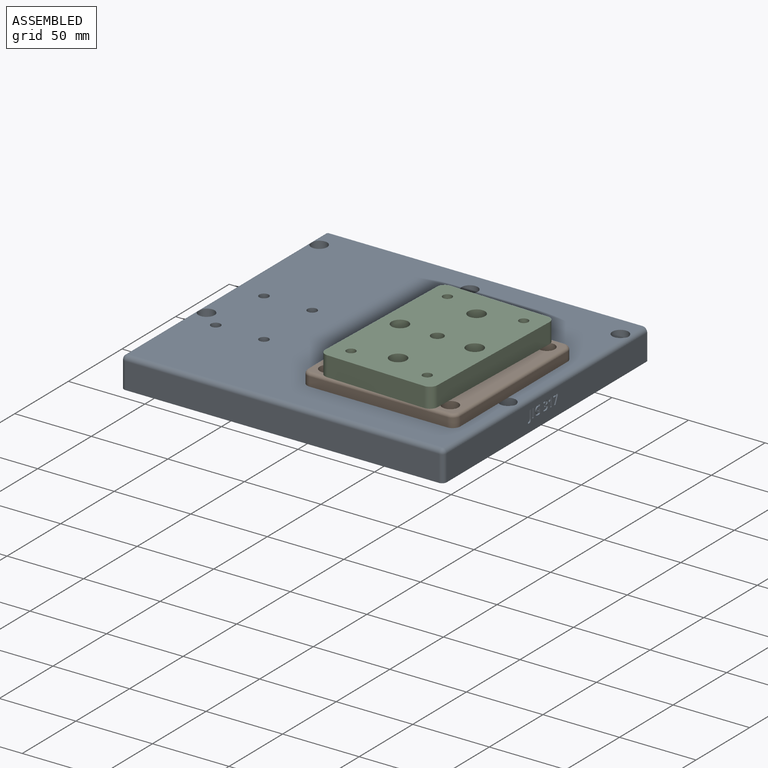
[diagram: assembled view]
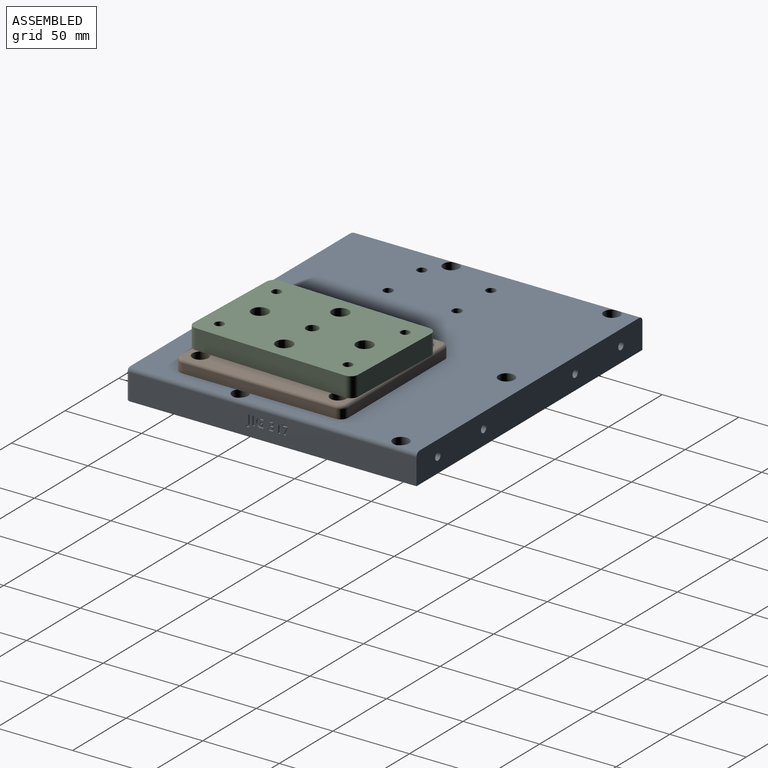
[diagram: assembled view, second angle]
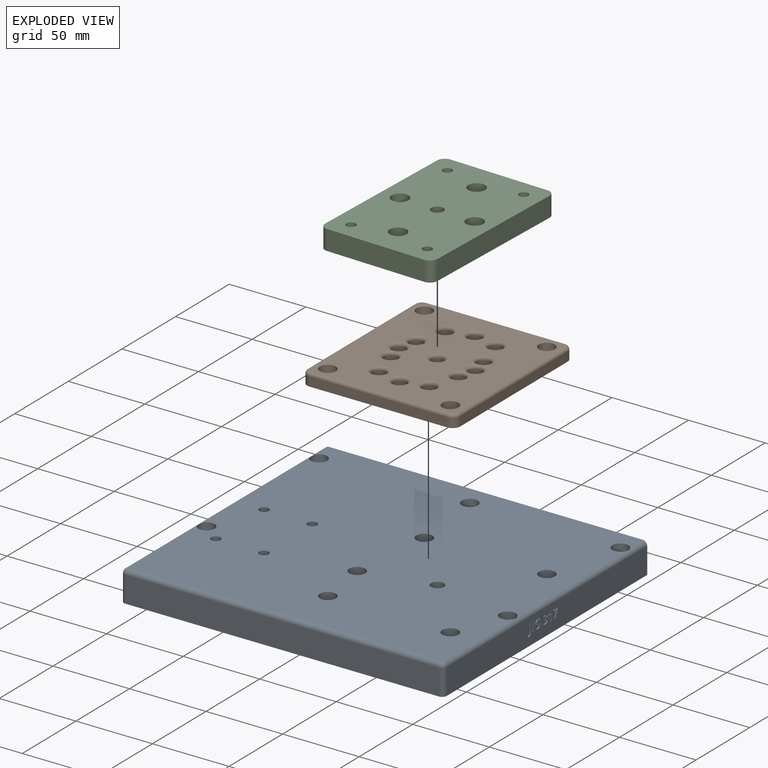
[diagram: exploded view]
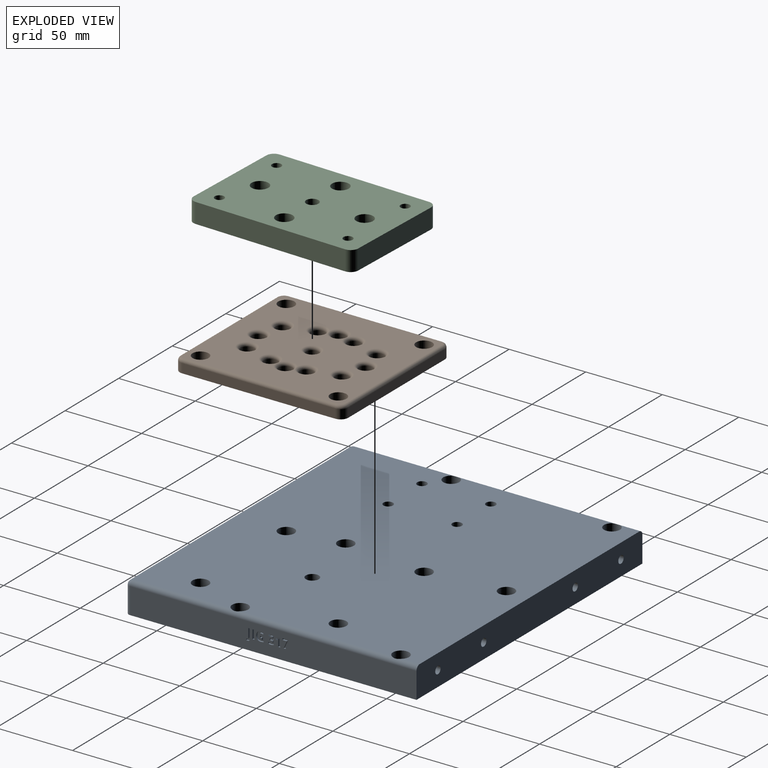
[diagram: exploded view, second angle]
ASSEMBLY  parts=3 mates=2
PART A: 139 faces, bbox 210.8x190x20 mm
  f0: plane 187x17mm, normal (1,0,0), area 3113mm2, adj f2,f5,f41,f43,f56,f57,f58,f59
  f1: plane 187x17mm, normal (-1,0,0), area 3179mm2, adj f2,f5,f37,f38
  f2: plane 210.75x20mm, normal (0,1,0), area 4132.6mm2, adj f0,f1,f5,f6,f29,f31,f33,f35
  f3: plane 204.75x17mm, normal (0,-1,0), area 3480.8mm2, adj f5,f37,f40,f43
  f4: cylinder r=4.25mm len=20mm, axis (0,0,1), area 534.1mm2, adj f5,f6
  f5: plane 210.75x190mm, normal (0,0,-1), area 39559.2mm2, adj f0,f1,f2,f3,f4,f7,f8,f9
  f6: plane 204.75x187mm, normal (0,0,1), area 37268.1mm2, adj f2,f4,f7,f8,f9,f10,f13,f16
  f7: cylinder r=3.1mm len=20mm, axis (0,0,1), area 389.6mm2, adj f5,f6
  f8: cylinder r=3.1mm len=20mm, axis (0,0,1), area 389.6mm2, adj f5,f6
  f9: cylinder r=3.1mm len=20mm, axis (0,0,1), area 389.6mm2, adj f5,f6
  f10: cylinder r=3.1mm len=20mm, axis (0,0,1), area 389.6mm2, adj f5,f6
  f11: cylinder r=3.1mm len=10mm, axis (0,0,1), area 194.8mm2, adj f5,f12
  f12: plane 10.5x10.5mm, normal (0,0,1), area 56.4mm2, adj f11,f13
  f13: cylinder r=5.25mm len=10.5mm, axis (0,0,1), area 328.8mm2, adj f6,f12,f38
  f14: cylinder r=3.1mm len=10mm, axis (0,0,1), area 194.8mm2, adj f5,f15
  f15: plane 10.5x10.5mm, normal (0,0,1), area 56.4mm2, adj f14,f16
  f16: cylinder r=5.25mm len=10.5mm, axis (0,0,1), area 328.8mm2, adj f6,f15,f38
  f17: cylinder r=3.1mm len=10mm, axis (0,0,1), area 194.8mm2, adj f5,f18
  f18: plane 10.5x10.5mm, normal (0,0,1), area 56.4mm2, adj f17,f19
  f19: cylinder r=5.25mm len=10.5mm, axis (0,0,1), area 329.9mm2, adj f6,f18
  f20: cylinder r=3.1mm len=10mm, axis (0,0,1), area 194.8mm2, adj f5,f21
  f21: plane 10.5x10.5mm, normal (0,0,1), area 56.4mm2, adj f20,f22
  f22: cylinder r=5.25mm len=10.5mm, axis (0,0,1), area 329.9mm2, adj f6,f21
  f23: cylinder r=3.1mm len=10mm, axis (0,0,1), area 194.8mm2, adj f5,f24
  f24: plane 10.5x10.5mm, normal (0,0,1), area 56.4mm2, adj f23,f25
  f25: cylinder r=5.25mm len=10.5mm, axis (0,0,1), area 328.9mm2, adj f6,f24,f41
  f26: cylinder r=3.1mm len=10mm, axis (0,0,1), area 194.8mm2, adj f5,f27
  f27: plane 10.5x10.5mm, normal (0,0,1), area 56.4mm2, adj f26,f28
  f28: cylinder r=5.25mm len=10.5mm, axis (0,0,1), area 328.9mm2, adj f6,f27,f41
  f29: cylinder r=2.5mm len=30mm, axis (0,1,0), area 471.2mm2, adj f2,f30
  f30: cone r=0mm half-angle=59deg, axis (0,1,0), area 22.9mm2, adj f29
  f31: cylinder r=2.5mm len=30mm, axis (0,1,0), area 471.2mm2, adj f2,f32
  f32: cone r=0mm half-angle=59deg, axis (0,1,0), area 22.9mm2, adj f31
  f33: cylinder r=2.5mm len=30mm, axis (0,1,0), area 471.2mm2, adj f2,f34
  f34: cone r=0mm half-angle=59deg, axis (0,1,0), area 22.9mm2, adj f33
  f35: cylinder r=2.5mm len=30mm, axis (0,1,0), area 471.2mm2, adj f2,f36
  f36: cone r=0mm half-angle=59deg, axis (0,1,0), area 22.9mm2, adj f35
  f37: cylinder r=3mm len=17mm, axis (0,0,-1), area 80.1mm2, adj f1,f3,f5,f39
  f38: cylinder r=3mm len=187mm, axis (0,1,0), area 869.3mm2, adj f1,f2,f6,f13,f16,f39
  f39: sphere r=3mm, area 14.1mm2, adj f37,f38,f40
  f40: cylinder r=3mm len=204.75mm, axis (-1,0,0), area 964.9mm2, adj f3,f6,f39,f42
  f41: cylinder r=3mm len=187mm, axis (0,-1,0), area 869.3mm2, adj f0,f2,f6,f25,f28,f42
  f42: sphere r=3mm, area 14.1mm2, adj f40,f41,f43
  f43: cylinder r=3mm len=17mm, axis (0,0,1), area 80.1mm2, adj f0,f3,f5,f42
  f44: cylinder r=3.1mm len=14.2mm, axis (0,0,1), area 276.6mm2, adj f5,f45
  f45: plane 10.5x10.5mm, normal (0,0,1), area 56.4mm2, adj f44,f46
  f46: cylinder r=5.25mm len=10.5mm, axis (0,0,1), area 191.3mm2, adj f6,f45
  f47: cylinder r=3.1mm len=14.2mm, axis (0,0,1), area 276.6mm2, adj f5,f48
  f48: plane 10.5x10.5mm, normal (0,0,1), area 56.4mm2, adj f47,f49
  f49: cylinder r=5.25mm len=10.5mm, axis (0,0,1), area 191.3mm2, adj f6,f48
  f50: cylinder r=3.1mm len=14.2mm, axis (0,0,1), area 276.6mm2, adj f5,f51
  f51: plane 10.5x10.5mm, normal (0,0,1), area 56.4mm2, adj f50,f52
  f52: cylinder r=5.25mm len=10.5mm, axis (0,0,1), area 191.3mm2, adj f6,f51
  f53: cylinder r=3.1mm len=14.2mm, axis (0,0,1), area 276.6mm2, adj f5,f54
  f54: plane 10.5x10.5mm, normal (0,0,1), area 56.4mm2, adj f53,f55
  f55: cylinder r=5.25mm len=10.5mm, axis (0,0,1), area 191.3mm2, adj f6,f54
  f56: plane 1.29x1mm, normal (0,0,1), area 1.3mm2, adj f0,f57,f62,f63
  f57: plane 5.05x2.21mm, normal (0,-0.92,0.4), area 5.5mm2, adj f0,f56,f58,f63
  f58: plane 1x0.78mm, normal (0,-1,0), area 0.8mm2, adj f0,f57,f59,f63
  f59: plane 4.19x1mm, normal (0,0,-1), area 4.2mm2, adj f0,f58,f60,f63
  f60: plane 1.04x1mm, normal (0,1,0), area 1mm2, adj f0,f59,f61,f63
  f61: plane 2.88x1mm, normal (0,0,1), area 2.9mm2, adj f0,f60,f62,f63
  f62: plane 4.79x2.19mm, normal (0,0.91,-0.42), area 5.3mm2, adj f0,f56,f61,f63
  f63: plane 5.83x4.19mm, normal (1,0,0), area 10.3mm2, adj f56,f57,f58,f59,f60,f61,f62
  f64: plane 5.84x1mm, normal (0,-1,0), area 5.8mm2, adj f0,f65,f73,f74
  f65: plane 1.01x1mm, normal (0,0,-1), area 1mm2, adj f0,f64,f66,f74
  f66: plane 1.88x1.5mm, normal (0,0.62,-0.78), area 2.4mm2, adj f0,f65,f67,f74
  f67: plane 1x0.74mm, normal (0,0.78,0.63), area 1mm2, adj f0,f66,f68,f74
  f68: plane 1x0.67mm, normal (0,-0.63,0.78), area 0.9mm2, adj f0,f67,f69,f74
  f69: extruded ~1x0.43mm, area 0.6mm2, adj f0,f68,f70,f74
  f70: plane 1x0.61mm, normal (0,1,-0.03), area 0.6mm2, adj f0,f69,f71,f74
  f71: plane 1x0.55mm, normal (0,1,-0.02), area 0.6mm2, adj f0,f70,f72,f74
  f72: plane 3.38x1mm, normal (0,1,0), area 3.4mm2, adj f0,f71,f73,f74
  f73: plane 1.23x1mm, normal (0,0,1), area 1.2mm2, adj f0,f64,f72,f74
  f74: plane 5.84x2.89mm, normal (1,0,0), area 8.8mm2, adj f64,f65,f66,f67,f68,f69,f70,f71
  f75: extruded ~1.02x1mm, area 1.2mm2, adj f0,f76,f101,f102
  f76: extruded ~1.43x1mm, area 1.5mm2, adj f0,f75,f77,f102
  f77: extruded ~1.9x1mm, area 2mm2, adj f0,f76,f78,f102
  f78: plane 1x0.85mm, normal (0,0.83,0.56), area 1mm2, adj f0,f77,f79,f102
  f79: extruded ~1x0.66mm, area 0.7mm2, adj f0,f78,f80,f102
  f80: extruded ~1x0.59mm, area 0.6mm2, adj f0,f79,f81,f102
  f81: extruded ~1x0.83mm, area 1.2mm2, adj f0,f80,f82,f102
  f82: extruded ~1x0.61mm, area 0.7mm2, adj f0,f81,f83,f102
  f83: extruded ~1x0.99mm, area 1mm2, adj f0,f82,f84,f102
  f84: plane 1x0.45mm, normal (0,0,-1), area 0.5mm2, adj f0,f83,f85,f102
  f85: plane 1x0.95mm, normal (0,1,0), area 0.9mm2, adj f0,f84,f86,f102
  f86: plane 1x0.44mm, normal (0,0,1), area 0.4mm2, adj f0,f85,f87,f102
  f87: extruded ~1.07x1mm, area 1.1mm2, adj f0,f86,f88,f102
  f88: extruded ~1x0.58mm, area 0.7mm2, adj f0,f87,f89,f102
  f89: extruded ~1x0.67mm, area 0.8mm2, adj f0,f88,f90,f102
  f90: extruded ~1x0.9mm, area 0.9mm2, adj f0,f89,f91,f102
  f91: extruded ~1x0.81mm, area 0.8mm2, adj f0,f90,f92,f102
  f92: extruded ~1x0.75mm, area 0.8mm2, adj f0,f91,f93,f102
  f93: plane 1.05x1mm, normal (0,1,0), area 1mm2, adj f0,f92,f94,f102
  f94: extruded ~1.68x1mm, area 1.7mm2, adj f0,f93,f95,f102
  f95: extruded ~1.74x1mm, area 1.8mm2, adj f0,f94,f96,f102
  f96: extruded ~1.31x1mm, area 1.5mm2, adj f0,f95,f97,f102
  f97: extruded ~1x0.92mm, area 1mm2, adj f0,f96,f98,f102
  f98: extruded ~1.07x1mm, area 1.2mm2, adj f0,f97,f99,f102
  f99: plane 1x0.02mm, normal (0,-1,0), area 0mm2, adj f0,f98,f100,f102
  f100: extruded ~1x0.93mm, area 1.1mm2, adj f0,f99,f101,f102
  f101: extruded ~1x0.93mm, area 1mm2, adj f0,f75,f100,f102
  f102: plane 6x4.04mm, normal (1,0,0), area 12.9mm2, adj f75,f76,f77,f78,f79,f80,f81,f82
  f103: plane 1.03x1mm, normal (0,1,0), area 1mm2, adj f0,f104,f121,f122
  f104: plane 1.11x1mm, normal (0,0,1), area 1.1mm2, adj f0,f103,f105,f122
  f105: plane 1.22x1mm, normal (0,1,0), area 1.2mm2, adj f0,f104,f106,f122
  f106: extruded ~1x0.79mm, area 0.8mm2, adj f0,f105,f107,f122
  f107: extruded ~1.13x1mm, area 1.3mm2, adj f0,f106,f108,f122
  f108: extruded ~1.45x1mm, area 1.5mm2, adj f0,f107,f109,f122
  f109: extruded ~1.45x1mm, area 1.6mm2, adj f0,f108,f110,f122
  f110: extruded ~1.29x1mm, area 1.4mm2, adj f0,f109,f111,f122
  f111: extruded ~1.33x1mm, area 1.4mm2, adj f0,f110,f112,f122
  f112: plane 1x0.99mm, normal (0,-0.92,0.38), area 1.1mm2, adj f0,f111,f113,f122
  f113: extruded ~1.73x1mm, area 1.8mm2, adj f0,f112,f114,f122
  f114: extruded ~2.24x1mm, area 2.4mm2, adj f0,f113,f115,f122
  f115: extruded ~2.2x1mm, area 2.4mm2, adj f0,f114,f116,f122
  f116: extruded ~2.23x1mm, area 2.4mm2, adj f0,f115,f117,f122
  f117: extruded ~2.02x1mm, area 2.2mm2, adj f0,f116,f118,f122
  f118: extruded ~1.02x1mm, area 1mm2, adj f0,f117,f119,f122
  f119: extruded ~1.06x1mm, area 1.1mm2, adj f0,f118,f120,f122
  f120: plane 3.03x1mm, normal (0,-1,0), area 3mm2, adj f0,f119,f121,f122
  f121: plane 2.32x1mm, normal (0,0,-1), area 2.3mm2, adj f0,f103,f120,f122
  f122: plane 6x4.79mm, normal (1,0,0), area 16.6mm2, adj f103,f104,f105,f106,f107,f108,f109,f110
  f123: plane 1.24x1mm, normal (0,0,1), area 1.2mm2, adj f0,f124,f126,f127
  f124: plane 5.84x1mm, normal (0,-1,0), area 5.8mm2, adj f0,f123,f125,f127
  f125: plane 1.24x1mm, normal (0,0,-1), area 1.2mm2, adj f0,f124,f126,f127
  f126: plane 5.84x1mm, normal (0,1,0), area 5.8mm2, adj f0,f123,f125,f127
  f127: plane 5.84x1.24mm, normal (1,0,0), area 7.2mm2, adj f123,f124,f125,f126
  f128: extruded ~1.38x1mm, area 1.5mm2, adj f0,f129,f137,f138
  f129: extruded ~1.56x1mm, area 1.7mm2, adj f0,f128,f130,f138
  f130: plane 5.46x1mm, normal (0,-1,0), area 5.5mm2, adj f0,f129,f131,f138
  f131: plane 1.24x1mm, normal (0,0,-1), area 1.2mm2, adj f0,f130,f132,f138
  f132: plane 5.47x1mm, normal (0,1,0), area 5.5mm2, adj f0,f131,f133,f138
  f133: extruded ~1x0.79mm, area 0.8mm2, adj f0,f132,f134,f138
  f134: extruded ~1x0.58mm, area 0.7mm2, adj f0,f133,f135,f138
  f135: extruded ~1x0.58mm, area 0.6mm2, adj f0,f134,f136,f138
  f136: plane 1.03x1mm, normal (0,1,0), area 1mm2, adj f0,f135,f137,f138
  f137: extruded ~1x0.73mm, area 0.7mm2, adj f0,f128,f136,f138
  f138: plane 7.55x2.58mm, normal (1,0,0), area 10.2mm2, adj f128,f129,f130,f131,f132,f133,f134,f135
PART B: 56 faces, bbox 100.8x8x110.8 mm
  f0: plane 106x96mm, normal (0,-1,0), area 8123.8mm2, adj f19,f20,f21,f22,f23,f24,f25,f26
  f1: plane 90x6mm, normal (0,0,-1), area 540mm2, adj f18,f32,f48,f54
  f2: plane 100x6mm, normal (1,0,0), area 600mm2, adj f18,f33,f52,f54
  f3: plane 90x6mm, normal (0,0,1), area 540mm2, adj f18,f35,f50,f52
  f4: cylinder r=4.1mm len=8.2mm, axis (0,-1,0), area 154.6mm2, adj f18,f31
  f5: cylinder r=4.5mm len=9mm, axis (0,-1,0), area 169.6mm2, adj f18,f30
  f6: cylinder r=4.5mm len=9mm, axis (0,-1,0), area 169.6mm2, adj f18,f27
  f7: cylinder r=4.5mm len=9mm, axis (0,-1,0), area 169.6mm2, adj f18,f29
  f8: cylinder r=4.5mm len=9mm, axis (0,-1,0), area 169.6mm2, adj f18,f26
  f9: cylinder r=4.5mm len=9mm, axis (0,-1,0), area 169.6mm2, adj f18,f28
  f10: cylinder r=4.5mm len=9mm, axis (0,-1,0), area 169.6mm2, adj f18,f20
  f11: cylinder r=4.5mm len=9mm, axis (0,-1,0), area 169.6mm2, adj f18,f21
  f12: cylinder r=4.5mm len=9mm, axis (0,-1,0), area 169.6mm2, adj f18,f25
  f13: cylinder r=4.5mm len=9mm, axis (0,-1,0), area 169.6mm2, adj f18,f24
  f14: cylinder r=4.5mm len=9mm, axis (0,-1,0), area 169.6mm2, adj f18,f23
  f15: cylinder r=4.5mm len=9mm, axis (0,-1,0), area 169.6mm2, adj f18,f22
  f16: cylinder r=4.5mm len=9mm, axis (0,-1,0), area 169.6mm2, adj f18,f19
  f17: plane 100x6mm, normal (-1,0,0), area 600mm2, adj f18,f34,f48,f50
  f18: plane 110x100mm, normal (0,1,0), area 10041.6mm2, adj f1,f2,f3,f4,f5,f6,f7,f8
  f19: torus R=6.5mm, axis (0,-1,0), area 103.2mm2, adj f0,f16
  f20: torus R=6.5mm, axis (0,-1,0), area 101.7mm2, adj f0,f10,f22
  f21: torus R=6.5mm, axis (0,-1,0), area 101.7mm2, adj f0,f11,f22
  f22: torus R=6.5mm, axis (0,-1,0), area 100.3mm2, adj f0,f15,f20,f21
  f23: torus R=6.5mm, axis (0,-1,0), area 103.2mm2, adj f0,f14
  f24: torus R=6.5mm, axis (0,-1,0), area 103.2mm2, adj f0,f13
  f25: torus R=6.5mm, axis (0,-1,0), area 103.2mm2, adj f0,f12
  f26: torus R=6.5mm, axis (0,-1,0), area 101.7mm2, adj f0,f8,f27
  f27: torus R=6.5mm, axis (0,-1,0), area 100.3mm2, adj f0,f6,f26,f28
  f28: torus R=6.5mm, axis (0,-1,0), area 101.7mm2, adj f0,f9,f27
  f29: torus R=6.5mm, axis (0,-1,0), area 103.2mm2, adj f0,f7
  f30: torus R=6.5mm, axis (0,-1,0), area 103.2mm2, adj f0,f5
  f31: torus R=6.1mm, axis (0,-1,0), area 95.3mm2, adj f0,f4
  f32: cylinder r=2mm len=90mm, axis (1,0,0), area 282.7mm2, adj f0,f1,f49,f55
  f33: cylinder r=2mm len=100mm, axis (0,0,1), area 314.2mm2, adj f0,f2,f53,f55
  f34: cylinder r=2mm len=100mm, axis (0,0,-1), area 314.2mm2, adj f0,f17,f49,f51
  f35: cylinder r=2mm len=90mm, axis (-1,0,0), area 282.7mm2, adj f0,f3,f51,f53
  f36: cylinder r=3.1mm len=6.2mm, axis (0,-1,0), area 37mm2, adj f18,f37
  f37: plane 10.5x10.5mm, normal (0,-1,0), area 56.4mm2, adj f36,f38
  f38: cylinder r=5.25mm len=10.5mm, axis (0,-1,0), area 201.2mm2, adj f0,f37
  f39: cylinder r=3.1mm len=6.2mm, axis (0,-1,0), area 37mm2, adj f18,f40
  f40: plane 10.5x10.5mm, normal (0,-1,0), area 56.4mm2, adj f39,f41
  f41: cylinder r=5.25mm len=10.5mm, axis (0,-1,0), area 201.2mm2, adj f0,f40
  f42: cylinder r=3.1mm len=6.2mm, axis (0,-1,0), area 37mm2, adj f18,f43
  f43: plane 10.5x10.5mm, normal (0,-1,0), area 56.4mm2, adj f42,f44
  f44: cylinder r=5.25mm len=10.5mm, axis (0,-1,0), area 201.2mm2, adj f0,f43
  f45: cylinder r=3.1mm len=6.2mm, axis (0,-1,0), area 37mm2, adj f18,f46
  f46: plane 10.5x10.5mm, normal (0,-1,0), area 56.4mm2, adj f45,f47
  f47: cylinder r=5.25mm len=10.5mm, axis (0,-1,0), area 201.2mm2, adj f0,f46
  f48: cylinder r=5mm len=6mm, axis (0,-1,0), area 47.1mm2, adj f1,f17,f18,f49
  f49: torus R=3mm, axis (0,-1,0), area 21.1mm2, adj f0,f32,f34,f48
  f50: cylinder r=5mm len=6mm, axis (0,1,0), area 47.1mm2, adj f3,f17,f18,f51
  f51: torus R=3mm, axis (0,-1,0), area 21.1mm2, adj f0,f34,f35,f50
  f52: cylinder r=5mm len=6mm, axis (0,-1,0), area 47.1mm2, adj f2,f3,f18,f53
  f53: torus R=3mm, axis (0,-1,0), area 21.1mm2, adj f0,f33,f35,f52
  f54: cylinder r=5mm len=6mm, axis (0,1,0), area 47.1mm2, adj f1,f2,f18,f55
  f55: torus R=3mm, axis (0,-1,0), area 21.1mm2, adj f0,f32,f33,f54
PART C: 63 faces, bbox 75x110x13 mm
  f0: plane 110x75mm, normal (0,0,-1), area 7451.7mm2, adj f6,f7,f8,f9,f14,f16,f18,f20
  f1: cylinder r=3mm len=6mm, axis (0,0,1), area 52.8mm2, adj f29,f62
  f2: cylinder r=3mm len=6mm, axis (0,0,1), area 52.8mm2, adj f27,f55
  f3: cylinder r=3mm len=6mm, axis (0,0,1), area 52.8mm2, adj f25,f42
  f4: cylinder r=3mm len=6mm, axis (0,0,1), area 52.8mm2, adj f23,f35
  f5: plane 110x75mm, normal (0,0,1), area 7685mm2, adj f6,f7,f8,f9,f10,f11,f12,f13
  f6: plane 65x13mm, normal (0,-1,0), area 845mm2, adj f0,f5,f31,f34
  f7: plane 100x13mm, normal (-1,0,0), area 1300mm2, adj f0,f5,f31,f32
  f8: plane 65x13mm, normal (0,1,0), area 845mm2, adj f0,f5,f32,f33
  f9: plane 100x13mm, normal (1,0,0), area 1300mm2, adj f0,f5,f33,f34
  f10: cylinder r=3mm len=6.8mm, axis (0,0,-1), area 128.2mm2, adj f5,f21
  f11: cylinder r=3mm len=6.8mm, axis (0,0,-1), area 128.2mm2, adj f5,f19
  f12: cylinder r=3mm len=6.8mm, axis (0,0,-1), area 128.2mm2, adj f5,f17
  f13: cylinder r=3mm len=6.8mm, axis (0,0,-1), area 128.2mm2, adj f5,f15
  f14: cylinder r=5.5mm len=11mm, axis (0,0,-1), area 214.3mm2, adj f0,f15
  f15: plane 11x11mm, normal (0,0,-1), area 66.8mm2, adj f13,f14
  f16: cylinder r=5.5mm len=11mm, axis (0,0,-1), area 214.3mm2, adj f0,f17
  f17: plane 11x11mm, normal (0,0,-1), area 66.8mm2, adj f12,f16
  f18: cylinder r=5.5mm len=11mm, axis (0,0,-1), area 214.3mm2, adj f0,f19
  f19: plane 11x11mm, normal (0,0,-1), area 66.8mm2, adj f11,f18
  f20: cylinder r=5.5mm len=11mm, axis (0,0,-1), area 214.3mm2, adj f0,f21
  f21: plane 11x11mm, normal (0,0,-1), area 66.8mm2, adj f10,f20
  f22: cylinder r=5.5mm len=11mm, axis (0,0,1), area 214.3mm2, adj f5,f23
  f23: plane 11x11mm, normal (0,0,1), area 66.8mm2, adj f4,f22
  f24: cylinder r=5.5mm len=11mm, axis (0,0,1), area 214.3mm2, adj f5,f25
  f25: plane 11x11mm, normal (0,0,1), area 66.8mm2, adj f3,f24
  f26: cylinder r=5.5mm len=11mm, axis (0,0,1), area 214.3mm2, adj f5,f27
  f27: plane 11x11mm, normal (0,0,1), area 66.8mm2, adj f2,f26
  f28: cylinder r=5.5mm len=11mm, axis (0,0,1), area 214.3mm2, adj f5,f29
  f29: plane 11x11mm, normal (0,0,1), area 66.8mm2, adj f1,f28
  f30: cylinder r=4mm len=13mm, axis (0,0,1), area 326.7mm2, adj f0,f5
  f31: cylinder r=5mm len=13mm, axis (0,0,-1), area 102.1mm2, adj f0,f5,f6,f7
  f32: cylinder r=5mm len=13mm, axis (0,0,1), area 102.1mm2, adj f0,f5,f7,f8
  f33: cylinder r=5mm len=13mm, axis (0,0,-1), area 102.1mm2, adj f0,f5,f8,f9
  f34: cylinder r=5mm len=13mm, axis (0,0,1), area 102.1mm2, adj f0,f5,f6,f9
  f35: plane 11.51x10.41mm, normal (0,0,-1), area 58.3mm2, adj f4,f36,f37,f38,f39,f40,f41
  f36: plane 5.76x4mm, normal (0.08,-1,0), area 23.1mm2, adj f0,f35,f37,f41
  f37: plane 4.77x4mm, normal (-0.83,-0.56,0), area 23.1mm2, adj f0,f35,f36,f38
  f38: plane 5.21x4mm, normal (-0.9,0.43,0), area 23.1mm2, adj f0,f35,f37,f39
  f39: plane 5.76x4mm, normal (-0.08,1,0), area 23.1mm2, adj f0,f35,f38,f40
  f40: plane 4.77x4mm, normal (0.83,0.56,0), area 23.1mm2, adj f0,f35,f39,f41
  f41: plane 5.21x4mm, normal (0.9,-0.43,0), area 23.1mm2, adj f0,f35,f36,f40
  f42: plane 11.55x10mm, normal (0,0,-1), area 58.3mm2, adj f3,f43,f44,f45,f46,f47,f48
  f43: plane 5x4mm, normal (0.5,-0.87,0), area 23.1mm2, adj f0,f42,f44,f48
  f44: plane 5x4mm, normal (-0.5,-0.87,0), area 23.1mm2, adj f0,f42,f43,f45
  f45: plane 5.77x4mm, normal (-1,0,0), area 23.1mm2, adj f0,f42,f44,f46
  f46: plane 5x4mm, normal (-0.5,0.87,0), area 23.1mm2, adj f0,f42,f45,f47
  f47: plane 5x4mm, normal (0.5,0.87,0), area 23.1mm2, adj f0,f42,f46,f48
  f48: plane 5.77x4mm, normal (1,0,0), area 23.1mm2, adj f0,f42,f43,f47
  f49: plane 5.21x4mm, normal (0.9,0.43,0), area 23.1mm2, adj f0,f50,f54,f55
  f50: plane 4.77x4mm, normal (0.83,-0.56,0), area 23.1mm2, adj f0,f49,f51,f55
  f51: plane 5.76x4mm, normal (-0.08,-1,0), area 23.1mm2, adj f0,f50,f52,f55
  f52: plane 5.21x4mm, normal (-0.9,-0.43,0), area 23.1mm2, adj f0,f51,f53,f55
  f53: plane 4.77x4mm, normal (-0.83,0.56,0), area 23.1mm2, adj f0,f52,f54,f55
  f54: plane 5.76x4mm, normal (0.08,1,0), area 23.1mm2, adj f0,f49,f53,f55
  f55: plane 11.51x10.41mm, normal (0,0,-1), area 58.3mm2, adj f2,f49,f50,f51,f52,f53,f54
  f56: plane 5x4mm, normal (0.5,-0.87,0), area 23.1mm2, adj f0,f57,f61,f62
  f57: plane 5x4mm, normal (-0.5,-0.87,0), area 23.1mm2, adj f0,f56,f58,f62
  f58: plane 5.77x4mm, normal (-1,0,0), area 23.1mm2, adj f0,f57,f59,f62
  f59: plane 5x4mm, normal (-0.5,0.87,0), area 23.1mm2, adj f0,f58,f60,f62
  f60: plane 5x4mm, normal (0.5,0.87,0), area 23.1mm2, adj f0,f59,f61,f62
  f61: plane 5.77x4mm, normal (1,0,0), area 23.1mm2, adj f0,f56,f60,f62
  f62: plane 11.55x10mm, normal (0,0,-1), area 58.3mm2, adj f1,f56,f57,f58,f59,f60,f61
PLACE A t=(-10.44,-0.69,0.01)mm fixed
PLACE B rot(axis=(-1,0,0),90deg) t=(39.56,54.27,-18.99)mm
PLACE C rot(axis=(0,0,1),178.1deg) t=(-6.86,219.21,36.01)mm
MATE fastened B.f39 <-> A.f50  axis (0,0,-1) through (-50.44,64.27,-26.99)mm
MATE revolute C.f30 <-> B.f4  axis (0,0,-1) through (-10.44,109.27,-18.99)mm
